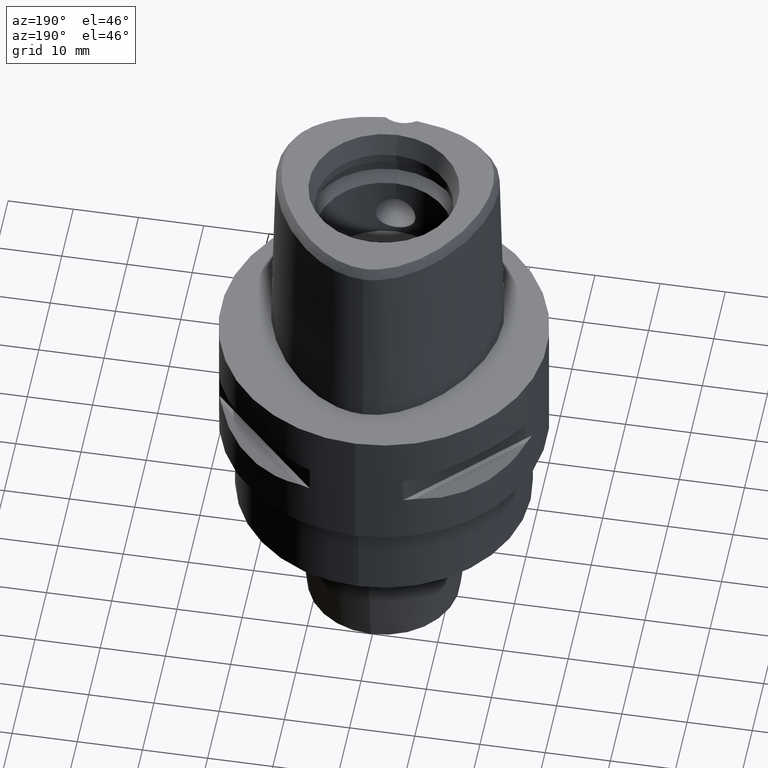
[diagram: clean part render]
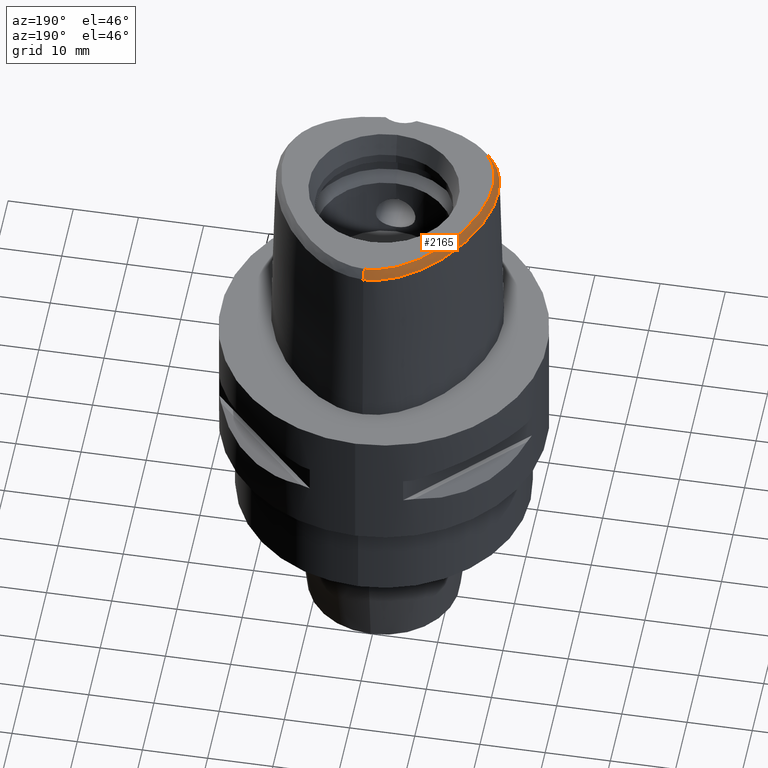
[diagram: same view with one face highlighted and labeled with its STEP entity id]
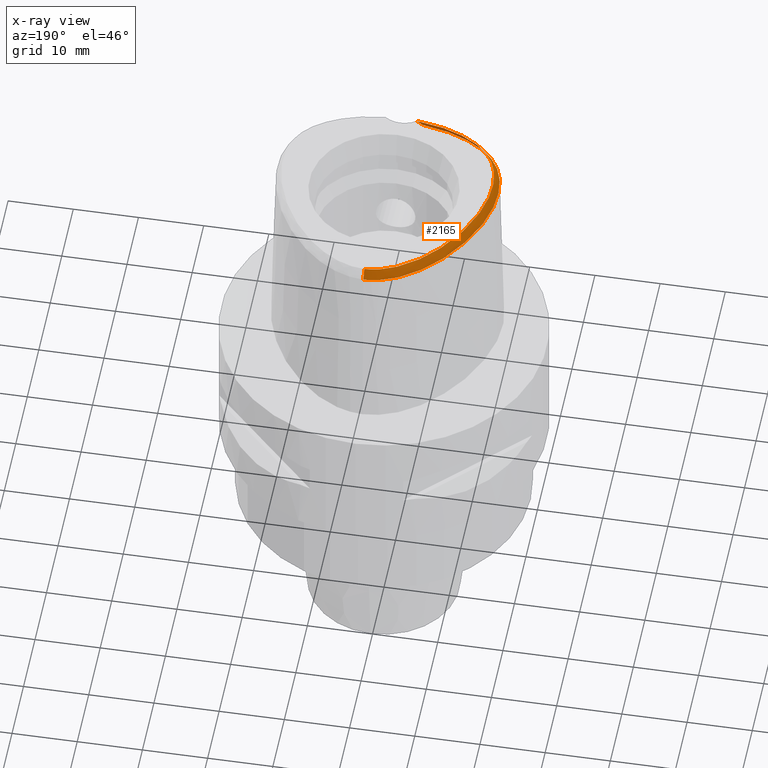
[diagram: x-ray of the same camera — body ghosted, the highlighted face saturated]
A machine part, auxiliary view. The second image highlights one B-rep face of the part: STEP entity #2165.
The next image is the same camera in x-ray: the body ghosted, the highlighted face saturated — about 0% of this face is hidden behind the body in this view.
In plain terms, the highlighted face is a freeform B-spline surface patch.
Its self-contained STEP definition (entity closure, byte-faithful):
#26=CARTESIAN_POINT('',(-2.406542353495E0,-1.480491723099E1,3.E1));
#27=CARTESIAN_POINT('',(-3.063045419341E0,-1.474547283461E1,3.E1));
#28=CARTESIAN_POINT('',(-4.303565808060E0,-1.458403483763E1,3.E1));
#29=CARTESIAN_POINT('',(-5.974627707170E0,-1.424127184088E1,3.E1));
#30=CARTESIAN_POINT('',(-7.385020166861E0,-1.384816284110E1,3.E1));
#31=CARTESIAN_POINT('',(-8.623176359756E0,-1.341463936326E1,3.E1));
#32=CARTESIAN_POINT('',(-9.748791119319E0,-1.293351203441E1,3.E1));
#33=CARTESIAN_POINT('',(-1.077832098876E1,-1.240450190870E1,3.E1));
#34=CARTESIAN_POINT('',(-1.172234767273E1,-1.182520282564E1,3.E1));
#35=CARTESIAN_POINT('',(-1.258180255053E1,-1.119423845693E1,3.E1));
#36=CARTESIAN_POINT('',(-1.333362493084E1,-1.053008910135E1,3.E1));
#37=CARTESIAN_POINT('',(-1.396660970363E1,-9.854803129488E0,3.E1));
#38=CARTESIAN_POINT('',(-1.449260590417E1,-9.172514910306E0,3.E1));
#39=CARTESIAN_POINT('',(-1.492484478330E1,-8.481290392586E0,3.E1));
#40=CARTESIAN_POINT('',(-1.528881086813E1,-7.746269653395E0,3.E1));
#41=CARTESIAN_POINT('',(-1.560033703915E1,-6.926013457821E0,3.E1));
#42=CARTESIAN_POINT('',(-1.585000045122E1,-6.014848080444E0,3.E1));
#43=CARTESIAN_POINT('',(-1.602875905119E1,-4.995971775288E0,3.E1));
#44=CARTESIAN_POINT('',(-1.611988320049E1,-3.915099888329E0,3.E1));
#45=CARTESIAN_POINT('',(-1.612412785196E1,-2.798639686343E0,3.E1));
#46=CARTESIAN_POINT('',(-1.604165584598E1,-1.624580695896E0,3.E1));
#47=CARTESIAN_POINT('',(-1.586829087460E1,-3.915123026347E-1,3.E1));
#48=CARTESIAN_POINT('',(-1.559120704344E1,9.340965755211E-1,3.E1));
#49=CARTESIAN_POINT('',(-1.518190728808E1,2.402120076070E0,3.E1));
#50=CARTESIAN_POINT('',(-1.458734784485E1,4.072391233643E0,3.E1));
#51=CARTESIAN_POINT('',(-1.379337337680E1,5.861234291353E0,3.E1));
#52=CARTESIAN_POINT('',(-1.285828729799E1,7.603043278278E0,3.E1));
#53=CARTESIAN_POINT('',(-1.179266767941E1,9.279347844791E0,3.E1));
#54=CARTESIAN_POINT('',(-1.063764865433E1,1.082484586279E1,3.E1));
#55=CARTESIAN_POINT('',(-9.506860344091E0,1.212398807511E1,3.E1));
#56=CARTESIAN_POINT('',(-8.455558501750E0,1.317589253083E1,3.E1));
#57=CARTESIAN_POINT('',(-7.459580315869E0,1.405035930069E1,3.E1));
#58=CARTESIAN_POINT('',(-6.474390793395E0,1.480538990028E1,3.E1));
#59=CARTESIAN_POINT('',(-5.494784426801E0,1.545154105480E1,3.E1));
#60=CARTESIAN_POINT('',(-4.522458306575E0,1.599295355450E1,3.E1));
#61=CARTESIAN_POINT('',(-3.553033106933E0,1.643405330939E1,3.E1));
#62=CARTESIAN_POINT('',(-2.597958697224E0,1.676994318343E1,3.E1));
#63=CARTESIAN_POINT('',(-1.688275159587E0,1.699659131727E1,3.E1));
#64=CARTESIAN_POINT('',(-8.293228548696E-1,1.712526238090E1,3.E1));
#65=CARTESIAN_POINT('',(-2.727752266783E-1,1.715328888648E1,3.E1));
#66=CARTESIAN_POINT('',(-6.301949019190E-11,1.715328888648E1,3.E1));
#185=CARTESIAN_POINT('',(-2.406542353495E0,-1.480491723099E1,3.E1));
#186=CARTESIAN_POINT('',(-2.503290605226E0,-1.487778819623E1,2.985488394453E1));
#187=CARTESIAN_POINT('',(-2.688324089290E0,-1.503103949133E1,2.955101221141E1));
#188=CARTESIAN_POINT('',(-2.938738824104E0,-1.527862540432E1,2.906477375281E1));
#189=CARTESIAN_POINT('',(-3.094738814139E0,-1.546280268259E1,2.870679581557E1));
#190=CARTESIAN_POINT('',(-3.168920966623E0,-1.555911077539E1,2.852071192347E1));
#195=CARTESIAN_POINT('',(-3.168920966623E0,-1.555911077539E1,2.852071192347E1));
#196=CARTESIAN_POINT('',(-3.837736182049E0,-1.548115786437E1,2.852068246566E1));
#197=CARTESIAN_POINT('',(-5.103782119425E0,-1.528209457027E1,2.852072510672E1));
#198=CARTESIAN_POINT('',(-6.760079202981E0,-1.489624739786E1,2.852071503998E1));
#199=CARTESIAN_POINT('',(-8.188437593360E0,-1.445768856473E1,2.852072783918E1));
#200=CARTESIAN_POINT('',(-9.462766666758E0,-1.397001735599E1,2.852070892690E1));
#201=CARTESIAN_POINT('',(-1.062951577327E1,-1.342631881633E1,2.852072283825E1));
#202=CARTESIAN_POINT('',(-1.170079661428E1,-1.282576930629E1,2.852071572594E1));
#203=CARTESIAN_POINT('',(-1.269044503179E1,-1.215933184955E1,2.852072036219E1));
#204=CARTESIAN_POINT('',(-1.356730027027E1,-1.144675639671E1,2.852072196700E1));
#205=CARTESIAN_POINT('',(-1.430922534506E1,-1.071867031655E1,2.852072393245E1));
#206=CARTESIAN_POINT('',(-1.493021945778E1,-9.980979596831E0,2.852069071567E1));
#207=CARTESIAN_POINT('',(-1.544743411559E1,-9.230092316297E0,2.852073173178E1));
#208=CARTESIAN_POINT('',(-1.587960461388E1,-8.446092640123E0,2.852072589593E1));
#209=CARTESIAN_POINT('',(-1.624668414723E1,-7.591406008451E0,2.852070996467E1));
#210=CARTESIAN_POINT('',(-1.654869315163E1,-6.647097524912E0,2.852071614703E1));
#211=CARTESIAN_POINT('',(-1.677796582715E1,-5.598622855311E0,2.852072582419E1));
#212=CARTESIAN_POINT('',(-1.692009512570E1,-4.444930026696E0,2.852071637324E1));
#213=CARTESIAN_POINT('',(-1.696313142354E1,-3.240112035959E0,2.852071470673E1));
#214=CARTESIAN_POINT('',(-1.690959853139E1,-1.991932894290E0,2.852072358921E1));
#215=CARTESIAN_POINT('',(-1.675743213075E1,-6.857481610584E-1,
2.852071384538E1));
#216=CARTESIAN_POINT('',(-1.649934258815E1,6.933089922967E-1,2.852072007591E1));
#217=CARTESIAN_POINT('',(-1.610858108721E1,2.209818849673E0,2.852072106401E1));
#218=CARTESIAN_POINT('',(-1.553337405452E1,3.928304583437E0,2.852070352667E1));
#219=CARTESIAN_POINT('',(-1.475029640947E1,5.784966994132E0,2.852072851764E1));
#220=CARTESIAN_POINT('',(-1.380351711318E1,7.623864666244E0,2.852068632665E1));
#221=CARTESIAN_POINT('',(-1.272177317847E1,9.387990291287E0,2.852072776472E1));
#222=CARTESIAN_POINT('',(-1.152439125667E1,1.104470359628E1,2.852071845997E1));
#223=CARTESIAN_POINT('',(-1.030947821446E1,1.247968278288E1,2.852070922930E1));
#224=CARTESIAN_POINT('',(-9.172345249801E0,1.364102940937E1,2.852071999735E1));
#225=CARTESIAN_POINT('',(-8.100559611741E0,1.459752362950E1,2.852071928113E1));
#226=CARTESIAN_POINT('',(-7.043550397989E0,1.541887157743E1,2.852072706536E1));
#227=CARTESIAN_POINT('',(-5.983239612586E0,1.612645039321E1,2.852071564398E1));
#228=CARTESIAN_POINT('',(-4.916156617128E0,1.672484094873E1,2.852072336274E1));
#229=CARTESIAN_POINT('',(-3.851561446278E0,1.720918916855E1,2.852071685543E1));
#230=CARTESIAN_POINT('',(-2.813932785451E0,1.757164956736E1,2.852071557048E1));
#231=CARTESIAN_POINT('',(-1.830419456418E0,1.781466922340E1,2.852076862494E1));
#232=CARTESIAN_POINT('',(-8.905463166457E-1,1.795292144106E1,2.852059221516E1));
#233=CARTESIAN_POINT('',(-2.983358066173E-1,1.798202997910E1,2.852071728568E1));
#234=CARTESIAN_POINT('',(-2.688765535033E-11,1.798202997910E1,
2.852071728569E1));
#239=DIRECTION('',(-2.130906326285E-11,-4.887572537797E-1,8.724198226070E-1));
#240=VECTOR('',#239,1.695608783731E0);
#241=CARTESIAN_POINT('',(-2.688765535033E-11,1.798202997910E1,
2.852071728569E1));
#242=LINE('',#241,#240);
#246=CARTESIAN_POINT('',(-3.168920966623E0,-1.555911077539E1,2.852071192347E1));
#1498=CARTESIAN_POINT('',(-2.406542353497E0,-1.480491723099E1,3.E1));
#1500=VERTEX_POINT('',#1498);
#1501=VERTEX_POINT('',#66);
#1510=VERTEX_POINT('',#246);
#1511=CARTESIAN_POINT('',(-2.688765535033E-11,1.798202997910E1,
2.852071728569E1));
#1512=VERTEX_POINT('',#1511);
#1933=CARTESIAN_POINT('',(4.598521139691E-1,1.707611006445E1,3.011601794224E1));
#1934=CARTESIAN_POINT('',(4.774728467851E-1,1.739519900574E1,2.954555684282E1));
#1935=CARTESIAN_POINT('',(4.950935796012E-1,1.771428794702E1,2.897509574340E1));
#1936=CARTESIAN_POINT('',(5.127143124173E-1,1.803337688831E1,2.840463464398E1));
#1937=CARTESIAN_POINT('',(3.027337733582E-1,1.708416644206E1,3.011601791746E1));
#1938=CARTESIAN_POINT('',(3.145355305155E-1,1.740359100219E1,2.954555693988E1));
#1939=CARTESIAN_POINT('',(3.263372876727E-1,1.772301556231E1,2.897509596229E1));
#1940=CARTESIAN_POINT('',(3.381390448300E-1,1.804244012244E1,2.840463498470E1));
#1941=CARTESIAN_POINT('',(-4.070731823747E-2,1.709348007118E1,
3.011601789968E1));
#1942=CARTESIAN_POINT('',(-4.220530728772E-2,1.741327874902E1,
2.954555700957E1));
#1943=CARTESIAN_POINT('',(-4.370329633797E-2,1.773307742685E1,
2.897509611947E1));
#1944=CARTESIAN_POINT('',(-4.520128538822E-2,1.805287610469E1,
2.840463522937E1));
#1945=CARTESIAN_POINT('',(-5.633534313531E-1,1.707524336385E1,
3.011601793451E1));
#1946=CARTESIAN_POINT('',(-5.857130283399E-1,1.739430949424E1,
2.954555687311E1));
#1947=CARTESIAN_POINT('',(-6.080726253267E-1,1.771337562463E1,
2.897509581170E1));
#1948=CARTESIAN_POINT('',(-6.304322223135E-1,1.803244175503E1,
2.840463475029E1));
#1949=CARTESIAN_POINT('',(-1.151141577981E0,1.701420133676E1,3.011601793911E1));
#1950=CARTESIAN_POINT('',(-1.195443208904E0,1.733095871106E1,2.954555685507E1));
#1951=CARTESIAN_POINT('',(-1.239744839826E0,1.764771608537E1,2.897509577102E1));
#1952=CARTESIAN_POINT('',(-1.284046470749E0,1.796447345967E1,2.840463468697E1));
#1953=CARTESIAN_POINT('',(-1.759509235300E0,1.690830337199E1,3.011601789570E1));
#1954=CARTESIAN_POINT('',(-1.825256223667E0,1.722130623287E1,2.954555702513E1));
#1955=CARTESIAN_POINT('',(-1.891003212034E0,1.753430909374E1,2.897509615456E1));
#1956=CARTESIAN_POINT('',(-1.956750200401E0,1.784731195461E1,2.840463528399E1));
#1957=CARTESIAN_POINT('',(-2.394042180458E0,1.675329878416E1,3.011601793252E1));
#1958=CARTESIAN_POINT('',(-2.480575703462E0,1.706119440427E1,2.954555688093E1));
#1959=CARTESIAN_POINT('',(-2.567109226467E0,1.736909002439E1,2.897509582935E1));
#1960=CARTESIAN_POINT('',(-2.653642749471E0,1.767698564450E1,2.840463477776E1));
#1961=CARTESIAN_POINT('',(-3.055505995337E0,1.654438649851E1,3.011601799179E1));
#1962=CARTESIAN_POINT('',(-3.162067446633E0,1.684592777003E1,2.954555664877E1));
#1963=CARTESIAN_POINT('',(-3.268628897929E0,1.714746904154E1,2.897509530574E1));
#1964=CARTESIAN_POINT('',(-3.375190349225E0,1.744901031306E1,2.840463396272E1));
#1965=CARTESIAN_POINT('',(-3.746332404320E0,1.627571273987E1,3.011601785143E1));
#1966=CARTESIAN_POINT('',(-3.872099957839E0,1.656975160843E1,2.954555719853E1));
#1967=CARTESIAN_POINT('',(-3.997867511358E0,1.686379047700E1,2.897509654562E1));
#1968=CARTESIAN_POINT('',(-4.123635064877E0,1.715782934556E1,2.840463589271E1));
#1969=CARTESIAN_POINT('',(-4.469372338832E0,1.594007619785E1,3.011601755293E1));
#1970=CARTESIAN_POINT('',(-4.613383600343E0,1.622561175488E1,2.954555836778E1));
#1971=CARTESIAN_POINT('',(-4.757394861853E0,1.651114731191E1,2.897509918263E1));
#1972=CARTESIAN_POINT('',(-4.901406123363E0,1.679668286894E1,2.840463999748E1));
#1973=CARTESIAN_POINT('',(-5.225068248109E0,1.553033365842E1,3.011601746194E1));
#1974=CARTESIAN_POINT('',(-5.386360613422E0,1.580646531428E1,2.954555872417E1));
#1975=CARTESIAN_POINT('',(-5.547652978735E0,1.608259697013E1,2.897509998639E1));
#1976=CARTESIAN_POINT('',(-5.708945344048E0,1.635872862598E1,2.840464124861E1));
#1977=CARTESIAN_POINT('',(-6.011255264448E0,1.503991872463E1,3.011601764370E1));
#1978=CARTESIAN_POINT('',(-6.188838981224E0,1.530585516579E1,2.954555801221E1));
#1979=CARTESIAN_POINT('',(-6.366422698E0,1.557179160695E1,2.897509838072E1));
#1980=CARTESIAN_POINT('',(-6.544006414776E0,1.583772804811E1,2.840463874923E1));
#1981=CARTESIAN_POINT('',(-6.823494494834E0,1.446349640586E1,3.011601796337E1));
#1982=CARTESIAN_POINT('',(-7.016384985465E0,1.471853822601E1,2.954555676009E1));
#1983=CARTESIAN_POINT('',(-7.209275476096E0,1.497358004617E1,2.897509555680E1));
#1984=CARTESIAN_POINT('',(-7.402165966727E0,1.522862186632E1,2.840463435352E1));
#1985=CARTESIAN_POINT('',(-7.658498704436E0,1.379462516004E1,3.011601787997E1));
#1986=CARTESIAN_POINT('',(-7.865722136495E0,1.403815423549E1,2.954555708676E1));
#1987=CARTESIAN_POINT('',(-8.072945568554E0,1.428168331095E1,2.897509629356E1));
#1988=CARTESIAN_POINT('',(-8.280169000613E0,1.452521238640E1,2.840463550035E1));
#1989=CARTESIAN_POINT('',(-8.512070604291E0,1.302725507831E1,3.011601773347E1));
#1990=CARTESIAN_POINT('',(-8.732638209792E0,1.325875704167E1,2.954555766060E1));
#1991=CARTESIAN_POINT('',(-8.953205815292E0,1.349025900503E1,2.897509758774E1));
#1992=CARTESIAN_POINT('',(-9.173773420793E0,1.372176096840E1,2.840463751487E1));
#1993=CARTESIAN_POINT('',(-9.373471887862E0,1.216123237314E1,3.011601779029E1));
#1994=CARTESIAN_POINT('',(-9.606451161927E0,1.238023081541E1,2.954555743803E1));
#1995=CARTESIAN_POINT('',(-9.839430435991E0,1.259922925768E1,2.897509708578E1));
#1996=CARTESIAN_POINT('',(-1.007240971006E1,1.281822769994E1,2.840463673353E1));
#1997=CARTESIAN_POINT('',(-1.022935097384E1,1.120088144488E1,3.011601795617E1));
#1998=CARTESIAN_POINT('',(-1.047385585210E1,1.140692516037E1,2.954555678824E1));
#1999=CARTESIAN_POINT('',(-1.071836073036E1,1.161296887585E1,2.897509562031E1));
#2000=CARTESIAN_POINT('',(-1.096286560861E1,1.181901259134E1,2.840463445238E1));
#2001=CARTESIAN_POINT('',(-1.106710928524E1,1.015197779940E1,3.011601786600E1));
#2002=CARTESIAN_POINT('',(-1.132227580442E1,1.034465455069E1,2.954555714147E1));
#2003=CARTESIAN_POINT('',(-1.157744232359E1,1.053733130198E1,2.897509641693E1));
#2004=CARTESIAN_POINT('',(-1.183260884276E1,1.073000805327E1,2.840463569239E1));
#2005=CARTESIAN_POINT('',(-1.187323960727E1,9.024160698969E0,3.011601782852E1));
#2006=CARTESIAN_POINT('',(-1.213824470672E1,9.203060097548E0,2.954555728826E1));
#2007=CARTESIAN_POINT('',(-1.240324980616E1,9.381959496127E0,2.897509674799E1));
#2008=CARTESIAN_POINT('',(-1.266825490560E1,9.560858894706E0,2.840463620772E1));
#2009=CARTESIAN_POINT('',(-1.263074184494E1,7.836072567990E0,3.011601791844E1));
#2010=CARTESIAN_POINT('',(-1.290479436224E1,8.000777208842E0,2.954555693606E1));
#2011=CARTESIAN_POINT('',(-1.317884687953E1,8.165481849695E0,2.897509595368E1));
#2012=CARTESIAN_POINT('',(-1.345289939682E1,8.330186490547E0,2.840463497129E1));
#2013=CARTESIAN_POINT('',(-1.332697573304E1,6.605189027867E0,3.011601789279E1));
#2014=CARTESIAN_POINT('',(-1.360932486150E1,6.755227324216E0,2.954555703655E1));
#2015=CARTESIAN_POINT('',(-1.389167398995E1,6.905265620565E0,2.897509618031E1));
#2016=CARTESIAN_POINT('',(-1.417402311840E1,7.055303916915E0,2.840463532407E1));
#2017=CARTESIAN_POINT('',(-1.395263622467E1,5.348455819267E0,3.011601784786E1));
#2018=CARTESIAN_POINT('',(-1.424249940846E1,5.483408939934E0,2.954555721252E1));
#2019=CARTESIAN_POINT('',(-1.453236259225E1,5.618362060600E0,2.897509657717E1));
#2020=CARTESIAN_POINT('',(-1.482222577605E1,5.753315181266E0,2.840463594183E1));
#2021=CARTESIAN_POINT('',(-1.449865510827E1,4.088141968912E0,3.011601793193E1));
#2022=CARTESIAN_POINT('',(-1.479527482401E1,4.207523142163E0,2.954555688324E1));
#2023=CARTESIAN_POINT('',(-1.509189453974E1,4.326904315415E0,2.897509583456E1));
#2024=CARTESIAN_POINT('',(-1.538851425548E1,4.446285488667E0,2.840463478587E1));
#2025=CARTESIAN_POINT('',(-1.495945055176E1,2.846132675373E0,3.011601791843E1));
#2026=CARTESIAN_POINT('',(-1.526206062671E1,2.949403015638E0,2.954555693611E1));
#2027=CARTESIAN_POINT('',(-1.556467070166E1,3.052673355903E0,2.897509595378E1));
#2028=CARTESIAN_POINT('',(-1.586728077661E1,3.155943696168E0,2.840463497146E1));
#2029=CARTESIAN_POINT('',(-1.533468134476E1,1.637455458496E0,3.011601766762E1));
#2030=CARTESIAN_POINT('',(-1.564247051606E1,1.724095820415E0,2.954555791854E1));
#2031=CARTESIAN_POINT('',(-1.595025968736E1,1.810736182334E0,2.897509816946E1));
#2032=CARTESIAN_POINT('',(-1.625804885866E1,1.897376544253E0,2.840463842037E1));
#2033=CARTESIAN_POINT('',(-1.562631346702E1,4.755727094298E-1,
3.011601763582E1));
#2034=CARTESIAN_POINT('',(-1.593843786727E1,5.450205154997E-1,
2.954555804308E1));
#2035=CARTESIAN_POINT('',(-1.625056226751E1,6.144683215697E-1,
2.897509845033E1));
#2036=CARTESIAN_POINT('',(-1.656268666776E1,6.839161276397E-1,
2.840463885759E1));
#2037=CARTESIAN_POINT('',(-1.583805772738E1,-6.267611069079E-1,
3.011601784269E1));
#2038=CARTESIAN_POINT('',(-1.615361725465E1,-5.750715293715E-1,
2.954555723277E1));
#2039=CARTESIAN_POINT('',(-1.646917678192E1,-5.233819518350E-1,
2.897509662284E1));
#2040=CARTESIAN_POINT('',(-1.678473630919E1,-4.716923742986E-1,
2.840463601292E1));
#2041=CARTESIAN_POINT('',(-1.597615584930E1,-1.663276679768E0,
3.011601795848E1));
#2042=CARTESIAN_POINT('',(-1.629418747891E1,-1.629950495982E0,
2.954555677923E1));
#2043=CARTESIAN_POINT('',(-1.661221910851E1,-1.596624312196E0,
2.897509559998E1));
#2044=CARTESIAN_POINT('',(-1.693025073812E1,-1.563298128411E0,
2.840463442074E1));
#2045=CARTESIAN_POINT('',(-1.604787055351E1,-2.632847939864E0,
3.011601792103E1));
#2046=CARTESIAN_POINT('',(-1.636732494373E1,-2.618389306488E0,
2.954555692590E1));
#2047=CARTESIAN_POINT('',(-1.668677933396E1,-2.603930673112E0,
2.897509593078E1));
#2048=CARTESIAN_POINT('',(-1.700623372418E1,-2.589472039736E0,
2.840463493565E1));
#2049=CARTESIAN_POINT('',(-1.606040288688E1,-3.534873809079E0,
3.011601790176E1));
#2050=CARTESIAN_POINT('',(-1.638015565369E1,-3.539806711700E0,
2.954555700141E1));
#2051=CARTESIAN_POINT('',(-1.669990842051E1,-3.544739614321E0,
2.897509610107E1));
#2052=CARTESIAN_POINT('',(-1.701966118732E1,-3.549672516942E0,
2.840463520072E1));
#2053=CARTESIAN_POINT('',(-1.602066411764E1,-4.371290412254E0,
3.011601784772E1));
#2054=CARTESIAN_POINT('',(-1.633950539330E1,-4.396032538485E0,
2.954555721308E1));
#2055=CARTESIAN_POINT('',(-1.665834666897E1,-4.420774664715E0,
2.897509657844E1));
#2056=CARTESIAN_POINT('',(-1.697718794464E1,-4.445516790945E0,
2.840463594380E1));
#2057=CARTESIAN_POINT('',(-1.593509535852E1,-5.144701756345E0,
3.011601791333E1));
#2058=CARTESIAN_POINT('',(-1.625173624254E1,-5.189610307261E0,
2.954555695610E1));
#2059=CARTESIAN_POINT('',(-1.656837712656E1,-5.234518858176E0,
2.897509599887E1));
#2060=CARTESIAN_POINT('',(-1.688501801058E1,-5.279427409091E0,
2.840463504164E1));
#2061=CARTESIAN_POINT('',(-1.580933615600E1,-5.858823735098E0,
3.011601793318E1));
#2062=CARTESIAN_POINT('',(-1.612240950434E1,-5.924163401307E0,
2.954555687834E1));
#2063=CARTESIAN_POINT('',(-1.643548285269E1,-5.989503067515E0,
2.897509582351E1));
#2064=CARTESIAN_POINT('',(-1.674855620103E1,-6.054842733723E0,
2.840463476868E1));
#2065=CARTESIAN_POINT('',(-1.564799537606E1,-6.518836028525E0,
3.011601792582E1));
#2066=CARTESIAN_POINT('',(-1.595607453025E1,-6.604725268146E0,
2.954555690715E1));
#2067=CARTESIAN_POINT('',(-1.626415368443E1,-6.690614507766E0,
2.897509588847E1));
#2068=CARTESIAN_POINT('',(-1.657223283861E1,-6.776503747387E0,
2.840463486980E1));
#2069=CARTESIAN_POINT('',(-1.545489814529E1,-7.129210010474E0,
3.011601789997E1));
#2070=CARTESIAN_POINT('',(-1.575650586794E1,-7.235643990996E0,
2.954555700839E1));
#2071=CARTESIAN_POINT('',(-1.605811359060E1,-7.342077971518E0,
2.897509611682E1));
#2072=CARTESIAN_POINT('',(-1.635972131326E1,-7.448511952039E0,
2.840463522524E1));
#2073=CARTESIAN_POINT('',(-1.523257812357E1,-7.695308229098E0,
3.011601789268E1));
#2074=CARTESIAN_POINT('',(-1.552620863826E1,-7.822113762592E0,
2.954555703694E1));
#2075=CARTESIAN_POINT('',(-1.581983915296E1,-7.948919296085E0,
2.897509618119E1));
#2076=CARTESIAN_POINT('',(-1.611346966766E1,-8.075724829578E0,
2.840463532544E1));
#2077=CARTESIAN_POINT('',(-1.498370574502E1,-8.219980559379E0,
3.011601794450E1));
#2078=CARTESIAN_POINT('',(-1.526787907882E1,-8.366784158779E0,
2.954555683400E1));
#2079=CARTESIAN_POINT('',(-1.555205241262E1,-8.513587758178E0,
2.897509572349E1));
#2080=CARTESIAN_POINT('',(-1.583622574642E1,-8.660391357577E0,
2.840463461299E1));
#2081=CARTESIAN_POINT('',(-1.470768292311E1,-8.710807820822E0,
3.011601791024E1));
#2082=CARTESIAN_POINT('',(-1.498076671744E1,-8.877338007387E0,
2.954555696818E1));
#2083=CARTESIAN_POINT('',(-1.525385051178E1,-9.043868193951E0,
2.897509602612E1));
#2084=CARTESIAN_POINT('',(-1.552693430611E1,-9.210398380516E0,
2.840463508406E1));
#2085=CARTESIAN_POINT('',(-1.439306957944E1,-9.189030990823E0,
3.011601792759E1));
#2086=CARTESIAN_POINT('',(-1.465390974073E1,-9.374132398853E0,
2.954555690022E1));
#2087=CARTESIAN_POINT('',(-1.491474990201E1,-9.559233806883E0,
2.897509587286E1));
#2088=CARTESIAN_POINT('',(-1.517559006330E1,-9.744335214913E0,
2.840463484549E1));
#2089=CARTESIAN_POINT('',(-1.403018542708E1,-9.665677442908E0,
3.011601788182E1));
#2090=CARTESIAN_POINT('',(-1.427770596077E1,-9.868236841766E0,
2.954555707950E1));
#2091=CARTESIAN_POINT('',(-1.452522649446E1,-1.007079624062E1,
2.897509627717E1));
#2092=CARTESIAN_POINT('',(-1.477274702815E1,-1.027335563948E1,
2.840463547485E1));
#2093=CARTESIAN_POINT('',(-1.361595423411E1,-1.013900476882E1,
3.011601792416E1));
#2094=CARTESIAN_POINT('',(-1.384919129489E1,-1.035784739115E1,
2.954555691365E1));
#2095=CARTESIAN_POINT('',(-1.408242835567E1,-1.057669001347E1,
2.897509590314E1));
#2096=CARTESIAN_POINT('',(-1.431566541646E1,-1.079553263580E1,
2.840463489263E1));
#2097=CARTESIAN_POINT('',(-1.314479048182E1,-1.060966860543E1,
3.011601792926E1));
#2098=CARTESIAN_POINT('',(-1.336295472741E1,-1.084352823781E1,
2.954555689371E1));
#2099=CARTESIAN_POINT('',(-1.358111897300E1,-1.107738787020E1,
2.897509585817E1));
#2100=CARTESIAN_POINT('',(-1.379928321860E1,-1.131124750258E1,
2.840463482262E1));
#2101=CARTESIAN_POINT('',(-1.261091900272E1,-1.107699130984E1,
3.011601792962E1));
#2102=CARTESIAN_POINT('',(-1.281335798078E1,-1.132457706069E1,
2.954555689228E1));
#2103=CARTESIAN_POINT('',(-1.301579695884E1,-1.157216281154E1,
2.897509585495E1));
#2104=CARTESIAN_POINT('',(-1.321823593690E1,-1.181974856239E1,
2.840463481762E1));
#2105=CARTESIAN_POINT('',(-1.200784143034E1,-1.153971734338E1,
3.011601786114E1));
#2106=CARTESIAN_POINT('',(-1.219404388109E1,-1.179972236472E1,
2.954555716053E1));
#2107=CARTESIAN_POINT('',(-1.238024633183E1,-1.205972738606E1,
2.897509645992E1));
#2108=CARTESIAN_POINT('',(-1.256644878258E1,-1.231973240740E1,
2.840463575931E1));
#2109=CARTESIAN_POINT('',(-1.132901470205E1,-1.199549206280E1,
3.011601787492E1));
#2110=CARTESIAN_POINT('',(-1.149861784226E1,-1.226660613142E1,
2.954555710652E1));
#2111=CARTESIAN_POINT('',(-1.166822098247E1,-1.253772020004E1,
2.897509633812E1));
#2112=CARTESIAN_POINT('',(-1.183782412268E1,-1.280883426866E1,
2.840463556971E1));
#2113=CARTESIAN_POINT('',(-1.056915205149E1,-1.244017937105E1,
3.011601792468E1));
#2114=CARTESIAN_POINT('',(-1.072187232746E1,-1.272113952383E1,
2.954555691161E1));
#2115=CARTESIAN_POINT('',(-1.087459260342E1,-1.300209967660E1,
2.897509589854E1));
#2116=CARTESIAN_POINT('',(-1.102731287938E1,-1.328305982938E1,
2.840463488547E1));
#2117=CARTESIAN_POINT('',(-9.722570176347E0,-1.286921842428E1,
3.011601793768E1));
#2118=CARTESIAN_POINT('',(-9.858272121114E0,-1.315877226241E1,
2.954555686071E1));
#2119=CARTESIAN_POINT('',(-9.993974065881E0,-1.344832610055E1,
2.897509578373E1));
#2120=CARTESIAN_POINT('',(-1.012967601065E1,-1.373787993868E1,
2.840463470675E1));
#2121=CARTESIAN_POINT('',(-8.785869493886E0,-1.327638487025E1,
3.011601791788E1));
#2122=CARTESIAN_POINT('',(-8.904448193461E0,-1.357335345748E1,
2.954555693826E1));
#2123=CARTESIAN_POINT('',(-9.023026893035E0,-1.387032204471E1,
2.897509595864E1));
#2124=CARTESIAN_POINT('',(-9.141605592609E0,-1.416729063194E1,
2.840463497902E1));
#2125=CARTESIAN_POINT('',(-7.756101068576E0,-1.365495998318E1,
3.011601768781E1));
#2126=CARTESIAN_POINT('',(-7.857570602810E0,-1.395819270026E1,
2.954555783946E1));
#2127=CARTESIAN_POINT('',(-7.959040137043E0,-1.426142541733E1,
2.897509799111E1));
#2128=CARTESIAN_POINT('',(-8.060509671277E0,-1.456465813441E1,
2.840463814276E1));
#2129=CARTESIAN_POINT('',(-6.633079446666E0,-1.399720016787E1,
3.011601763706E1));
#2130=CARTESIAN_POINT('',(-6.717474519454E0,-1.430561445417E1,
2.954555803825E1));
#2131=CARTESIAN_POINT('',(-6.801869592242E0,-1.461402874047E1,
2.897509843943E1));
#2132=CARTESIAN_POINT('',(-6.886264665031E0,-1.492244302677E1,
2.840463884062E1));
#2133=CARTESIAN_POINT('',(-5.424171532506E0,-1.429351026125E1,
3.011601784047E1));
#2134=CARTESIAN_POINT('',(-5.491557004653E0,-1.460607672242E1,
2.954555724148E1));
#2135=CARTESIAN_POINT('',(-5.558942476800E0,-1.491864318359E1,
2.897509664249E1));
#2136=CARTESIAN_POINT('',(-5.626327948948E0,-1.523120964477E1,
2.840463604350E1));
#2137=CARTESIAN_POINT('',(-4.140243446524E0,-1.453495879679E1,
3.011601795914E1));
#2138=CARTESIAN_POINT('',(-4.190655790869E0,-1.485070323282E1,
2.954555677666E1));
#2139=CARTESIAN_POINT('',(-4.241068135215E0,-1.516644766885E1,
2.897509559419E1));
#2140=CARTESIAN_POINT('',(-4.291480479560E0,-1.548219210488E1,
2.840463441172E1));
#2141=CARTESIAN_POINT('',(-3.115634334717E0,-1.467106503356E1,
3.011601787400E1));
#2142=CARTESIAN_POINT('',(-3.153211233834E0,-1.498850661741E1,
2.954555711013E1));
#2143=CARTESIAN_POINT('',(-3.190788132951E0,-1.530594820126E1,
2.897509634627E1));
#2144=CARTESIAN_POINT('',(-3.228365032068E0,-1.562338978511E1,
2.840463558240E1));
#2145=CARTESIAN_POINT('',(-2.370141780255E0,-1.474414055266E1,
3.011601785405E1));
#2146=CARTESIAN_POINT('',(-2.398587283235E0,-1.506247712324E1,
2.954555718830E1));
#2147=CARTESIAN_POINT('',(-2.427032786215E0,-1.538081369382E1,
2.897509652256E1));
#2148=CARTESIAN_POINT('',(-2.455478289195E0,-1.569915026440E1,
2.840463585682E1));
#2149=CARTESIAN_POINT('',(-2.080527689046E0,-1.476769638123E1,
3.011601785337E1));
#2150=CARTESIAN_POINT('',(-2.105458552268E0,-1.508631867739E1,
2.954555719094E1));
#2151=CARTESIAN_POINT('',(-2.130389415489E0,-1.540494097354E1,
2.897509652851E1));
#2152=CARTESIAN_POINT('',(-2.155320278710E0,-1.572356326970E1,
2.840463586607E1));
#2153=CARTESIAN_POINT('',(-1.919615831508E0,-1.477930183214E1,
3.011601785488E1));
#2154=CARTESIAN_POINT('',(-1.942601769437E0,-1.509806437448E1,
2.954555718499E1));
#2155=CARTESIAN_POINT('',(-1.965587707366E0,-1.541682691682E1,
2.897509651510E1));
#2156=CARTESIAN_POINT('',(-1.988573645294E0,-1.573558945916E1,
2.840463584521E1));
#2157=B_SPLINE_SURFACE_WITH_KNOTS('',3,3,((#1933,#1934,#1935,#1936),(#1937,
#1938,#1939,#1940),(#1941,#1942,#1943,#1944),(#1945,#1946,#1947,#1948),(#1949,
#1950,#1951,#1952),(#1953,#1954,#1955,#1956),(#1957,#1958,#1959,#1960),(#1961,
#1962,#1963,#1964),(#1965,#1966,#1967,#1968),(#1969,#1970,#1971,#1972),(#1973,
#1974,#1975,#1976),(#1977,#1978,#1979,#1980),(#1981,#1982,#1983,#1984),(#1985,
#1986,#1987,#1988),(#1989,#1990,#1991,#1992),(#1993,#1994,#1995,#1996),(#1997,
#1998,#1999,#2000),(#2001,#2002,#2003,#2004),(#2005,#2006,#2007,#2008),(#2009,
#2010,#2011,#2012),(#2013,#2014,#2015,#2016),(#2017,#2018,#2019,#2020),(#2021,
#2022,#2023,#2024),(#2025,#2026,#2027,#2028),(#2029,#2030,#2031,#2032),(#2033,
#2034,#2035,#2036),(#2037,#2038,#2039,#2040),(#2041,#2042,#2043,#2044),(#2045,
#2046,#2047,#2048),(#2049,#2050,#2051,#2052),(#2053,#2054,#2055,#2056),(#2057,
#2058,#2059,#2060),(#2061,#2062,#2063,#2064),(#2065,#2066,#2067,#2068),(#2069,
#2070,#2071,#2072),(#2073,#2074,#2075,#2076),(#2077,#2078,#2079,#2080),(#2081,
#2082,#2083,#2084),(#2085,#2086,#2087,#2088),(#2089,#2090,#2091,#2092),(#2093,
#2094,#2095,#2096),(#2097,#2098,#2099,#2100),(#2101,#2102,#2103,#2104),(#2105,
#2106,#2107,#2108),(#2109,#2110,#2111,#2112),(#2113,#2114,#2115,#2116),(#2117,
#2118,#2119,#2120),(#2121,#2122,#2123,#2124),(#2125,#2126,#2127,#2128),(#2129,
#2130,#2131,#2132),(#2133,#2134,#2135,#2136),(#2137,#2138,#2139,#2140),(#2141,
#2142,#2143,#2144),(#2145,#2146,#2147,#2148),(#2149,#2150,#2151,#2152),(#2153,
#2154,#2155,#2156)),.UNSPECIFIED.,.F.,.F.,.F.,(4,1,1,1,1,1,1,1,1,1,1,1,1,1,1,1,
1,1,1,1,1,1,1,1,1,1,1,1,1,1,1,1,1,1,1,1,1,1,1,1,1,1,1,1,1,1,1,1,1,1,1,1,1,4),(4,
4),(-1.581534407490E-2,0.E0,1.988866185211E-2,3.977732370550E-2,
5.966598555889E-2,7.955464741228E-2,9.944330926567E-2,1.193319711190E-1,
1.392206329725E-1,1.591092948259E-1,1.789979566792E-1,1.988866185326E-1,
2.187752803860E-1,2.386639422394E-1,2.585526040928E-1,2.784412659462E-1,
2.983299277995E-1,3.182185896530E-1,3.381072515064E-1,3.579959133597E-1,
3.778845752131E-1,3.977732370665E-1,4.176618989200E-1,4.375505607733E-1,
4.574392226267E-1,4.773278844801E-1,4.972165463334E-1,5.171052081869E-1,
5.369938700403E-1,5.568825318936E-1,5.767711937470E-1,5.966598556005E-1,
6.165485174538E-1,6.364371793072E-1,6.563258411606E-1,6.762145030140E-1,
6.961031648674E-1,7.159918267208E-1,7.358804885742E-1,7.557691504275E-1,
7.756578122809E-1,7.955464741344E-1,8.154351359877E-1,8.353237978411E-1,
8.552124596945E-1,8.751011215478E-1,8.949897834013E-1,9.148784452547E-1,
9.347671071081E-1,9.546557689614E-1,9.745444308149E-1,9.944330926683E-1,1.E0,
1.006911813929E0),(-5.618079347691E-2,1.056216878958E0),.UNSPECIFIED.);
#2158=ORIENTED_EDGE('',*,*,#1694,.T.);
#2160=ORIENTED_EDGE('',*,*,#2159,.T.);
#2161=ORIENTED_EDGE('',*,*,#1926,.T.);
#2162=ORIENTED_EDGE('',*,*,#1667,.F.);
#2163=EDGE_LOOP('',(#2158,#2160,#2161,#2162));
#2164=FACE_OUTER_BOUND('',#2163,.F.);
#67=B_SPLINE_CURVE_WITH_KNOTS('',3,(#26,#27,#28,#29,#30,#31,#32,#33,#34,#35,#36,
#37,#38,#39,#40,#41,#42,#43,#44,#45,#46,#47,#48,#49,#50,#51,#52,#53,#54,#55,#56,
#57,#58,#59,#60,#61,#62,#63,#64,#65,#66),.UNSPECIFIED.,.F.,.F.,(4,1,1,1,1,1,1,1,
1,1,1,1,1,1,1,1,1,1,1,1,1,1,1,1,1,1,1,1,1,1,1,1,1,1,1,1,1,1,4),(0.E0,
2.631578947368E-2,5.263157894737E-2,7.894736842105E-2,1.052631578947E-1,
1.315789473684E-1,1.578947368421E-1,1.842105263158E-1,2.105263157895E-1,
2.368421052632E-1,2.631578947368E-1,2.894736842105E-1,3.157894736842E-1,
3.421052631579E-1,3.684210526316E-1,3.947368421053E-1,4.210526315789E-1,
4.473684210526E-1,4.736842105263E-1,5.E-1,5.263157894737E-1,5.526315789474E-1,
5.789473684211E-1,6.052631578947E-1,6.315789473684E-1,6.578947368421E-1,
6.842105263158E-1,7.105263157895E-1,7.368421052632E-1,7.631578947368E-1,
7.894736842105E-1,8.157894736842E-1,8.421052631579E-1,8.684210526316E-1,
8.947368421053E-1,9.210526315789E-1,9.473684210526E-1,9.736842105263E-1,1.E0),
.UNSPECIFIED.);
#191=B_SPLINE_CURVE_WITH_KNOTS('',3,(#185,#186,#187,#188,#189,#190),
.UNSPECIFIED.,.F.,.F.,(4,1,1,4),(0.E0,3.333333333333E-1,6.666666666667E-1,1.E0),
.UNSPECIFIED.);
#235=B_SPLINE_CURVE_WITH_KNOTS('',3,(#195,#196,#197,#198,#199,#200,#201,#202,
#203,#204,#205,#206,#207,#208,#209,#210,#211,#212,#213,#214,#215,#216,#217,#218,
#219,#220,#221,#222,#223,#224,#225,#226,#227,#228,#229,#230,#231,#232,#233,
#234),.UNSPECIFIED.,.F.,.F.,(4,1,1,1,1,1,1,1,1,1,1,1,1,1,1,1,1,1,1,1,1,1,1,1,1,
1,1,1,1,1,1,1,1,1,1,1,1,4),(0.E0,2.702702702703E-2,5.405405405405E-2,
8.108108108108E-2,1.081081081081E-1,1.351351351351E-1,1.621621621622E-1,
1.891891891892E-1,2.162162162162E-1,2.432432432432E-1,2.702702702703E-1,
2.972972972973E-1,3.243243243243E-1,3.513513513514E-1,3.783783783784E-1,
4.054054054054E-1,4.324324324324E-1,4.594594594595E-1,4.864864864865E-1,
5.135135135135E-1,5.405405405405E-1,5.675675675676E-1,5.945945945946E-1,
6.216216216216E-1,6.486486486486E-1,6.756756756757E-1,7.027027027027E-1,
7.297297297297E-1,7.567567567568E-1,7.837837837838E-1,8.108108108108E-1,
8.378378378378E-1,8.648648648649E-1,8.918918918919E-1,9.189189189189E-1,
9.459459459459E-1,9.729729729730E-1,1.E0),.UNSPECIFIED.);
#1667=EDGE_CURVE('',#1500,#1501,#67,.T.);
#1694=EDGE_CURVE('',#1500,#1510,#191,.T.);
#1926=EDGE_CURVE('',#1512,#1501,#242,.T.);
#2159=EDGE_CURVE('',#1510,#1512,#235,.T.);
#2165=ADVANCED_FACE('',(#2164),#2157,.F.);